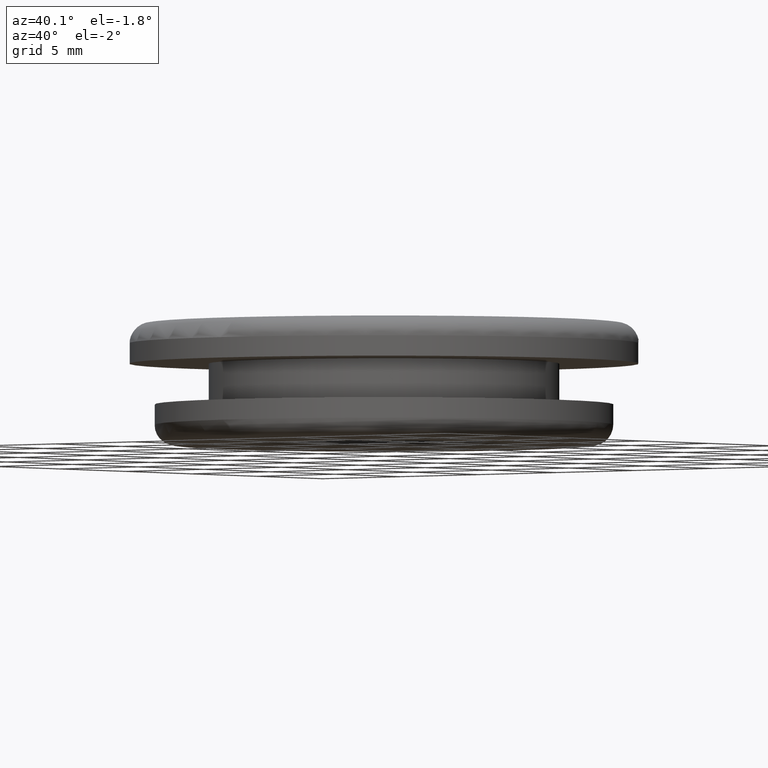
[diagram: clean part render]
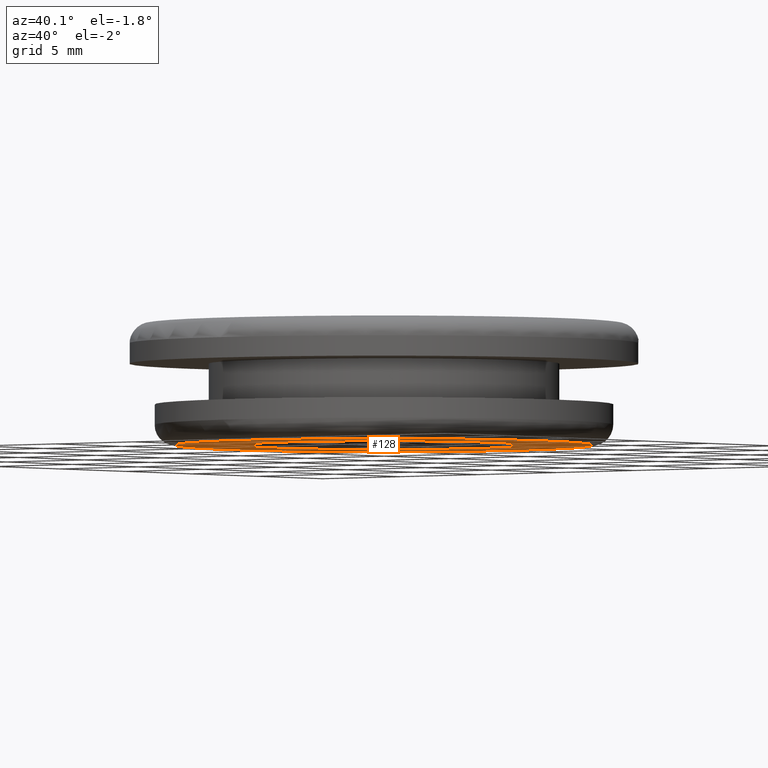
[diagram: same view with one face highlighted and labeled with its STEP entity id]
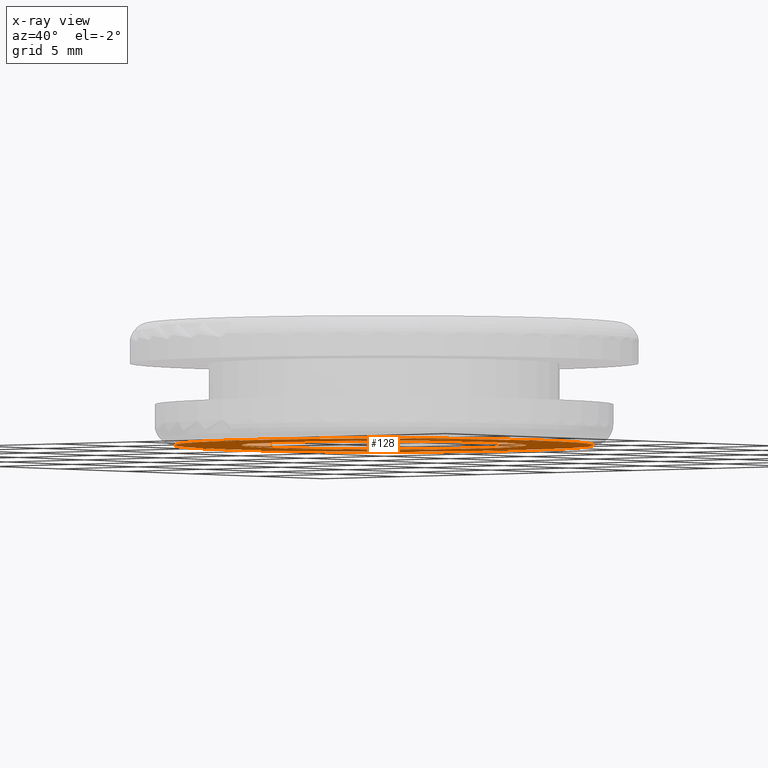
[diagram: x-ray of the same camera — body ghosted, the highlighted face saturated]
A machine part, auxiliary view. The second image highlights one B-rep face of the part: STEP entity #128.
The next image is the same camera in x-ray: the body ghosted, the highlighted face saturated — about 0% of this face is hidden behind the body in this view.
In plain terms, the highlighted planar face has unit normal (-0, 0, -1).
Its self-contained STEP definition (entity closure, byte-faithful):
#15=PLANE('',#145);
#26=FACE_BOUND('',#51,.T.);
#36=FACE_OUTER_BOUND('',#50,.T.);
#50=EDGE_LOOP('',(#105));
#51=EDGE_LOOP('',(#106));
#69=CIRCLE('',#142,7.);
#71=CIRCLE('',#146,10.25);
#80=VERTEX_POINT('',#215);
#82=VERTEX_POINT('',#221);
#91=EDGE_CURVE('',#80,#80,#69,.T.);
#93=EDGE_CURVE('',#82,#82,#71,.T.);
#105=ORIENTED_EDGE('',*,*,#93,.F.);
#106=ORIENTED_EDGE('',*,*,#91,.F.);
#128=ADVANCED_FACE('',(#36,#26),#15,.T.);
#142=AXIS2_PLACEMENT_3D('',#216,#169,#170);
#145=AXIS2_PLACEMENT_3D('',#220,#175,#176);
#146=AXIS2_PLACEMENT_3D('',#222,#177,#178);
#169=DIRECTION('center_axis',(-1.85037170770859E-16,0.,-1.));
#170=DIRECTION('ref_axis',(1.,0.,-1.85037170770859E-16));
#175=DIRECTION('center_axis',(-1.85037170770859E-16,0.,-1.));
#176=DIRECTION('ref_axis',(-1.,0.,1.77635683940025E-16));
#177=DIRECTION('center_axis',(1.85037170770859E-16,0.,1.));
#178=DIRECTION('ref_axis',(1.,0.,-1.85037170770859E-16));
#215=CARTESIAN_POINT('',(-7.,8.57252759403147E-16,-6.));
#216=CARTESIAN_POINT('Origin',(-1.10361455424048E-15,0.,-6.));
#220=CARTESIAN_POINT('Origin',(0.,0.,-6.));
#221=CARTESIAN_POINT('',(-10.25,-1.25526296912604E-15,-6.));
#222=CARTESIAN_POINT('Origin',(-1.11022302462516E-15,0.,-6.));